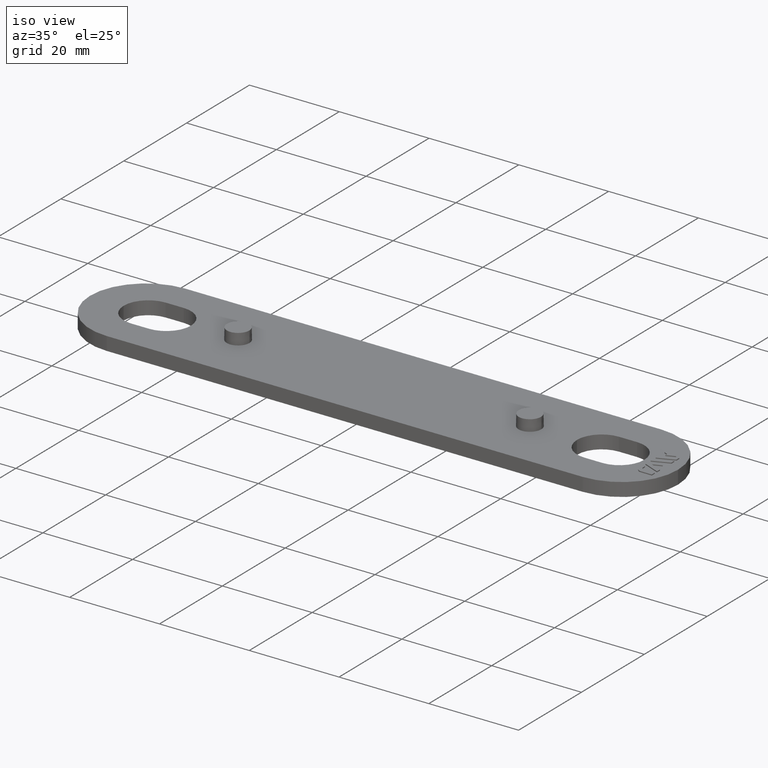
[diagram: clean part render]
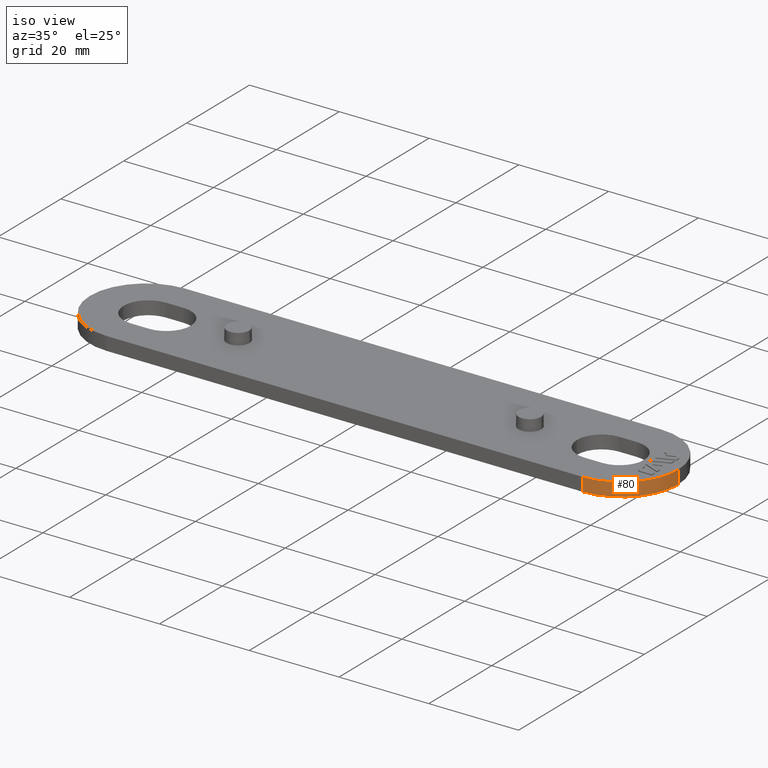
[diagram: same view with one face highlighted and labeled with its STEP entity id]
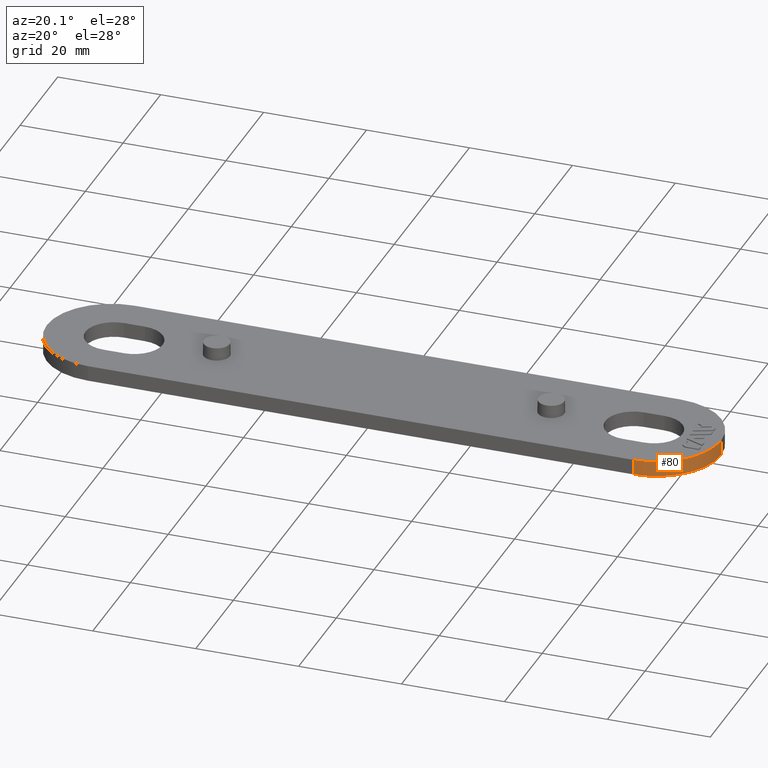
[diagram: same view with one face highlighted and labeled with its STEP entity id]
A machine part, iso view. The second image highlights one B-rep face of the part: STEP entity #80.
A second angle (auxiliary view) of the same face is appended — the face is thin or edge-on in the first view.
In plain terms, the highlighted cylindrical surface (partial cylindrical patch) has radius 12.5 mm, axis along (0, -0, -1).
Its self-contained STEP definition (entity closure, byte-faithful):
#80 = ADVANCED_FACE( '', ( #166 ), #167, .T. );
#166 = FACE_OUTER_BOUND( '', #323, .T. );
#167 = CYLINDRICAL_SURFACE( '', #324, 12.5000000000000 );
#323 = EDGE_LOOP( '', ( #540, #541, #542, #543 ) );
#324 = AXIS2_PLACEMENT_3D( '', #544, #545, #546 );
#540 = ORIENTED_EDGE( '', *, *, #1052, .T. );
#541 = ORIENTED_EDGE( '', *, *, #1088, .F. );
#542 = ORIENTED_EDGE( '', *, *, #1089, .F. );
#543 = ORIENTED_EDGE( '', *, *, #1086, .T. );
#544 = CARTESIAN_POINT( '', ( 53.0000000000000, -8.49741356322415E-031, -1.38777878078145E-014 ) );
#545 = DIRECTION( '', ( 5.60519385729927E-049, -6.12303176911189E-017, -1.00000000000000 ) );
#546 = DIRECTION( '', ( -6.12303176911189E-017, -1.00000000000000, 6.12303176911189E-017 ) );
#1052 = EDGE_CURVE( '', #1253, #1251, #1254, .T. );
#1086 = EDGE_CURVE( '', #1317, #1253, #1318, .T. );
#1088 = EDGE_CURVE( '', #1320, #1251, #1321, .T. );
#1089 = EDGE_CURVE( '', #1317, #1320, #1322, .T. );
#1251 = VERTEX_POINT( '', #1563 );
#1253 = VERTEX_POINT( '', #1566 );
#1254 = CIRCLE( '', #1567, 12.5000000000000 );
#1317 = VERTEX_POINT( '', #1655 );
#1318 = LINE( '', #1656, #1657 );
#1320 = VERTEX_POINT( '', #1659 );
#1321 = LINE( '', #1660, #1661 );
#1322 = CIRCLE( '', #1662, 12.5000000000000 );
#1563 = CARTESIAN_POINT( '', ( 53.0000000000000, -12.5000000000000, 2.99999999999999 ) );
#1566 = CARTESIAN_POINT( '', ( 65.5000000000000, 1.83690953073356E-016, 2.99999999999999 ) );
#1567 = AXIS2_PLACEMENT_3D( '', #1986, #1987, #1988 );
#1655 = CARTESIAN_POINT( '', ( 65.5000000000000, -8.49741356322415E-031, -1.38777878078145E-014 ) );
#1656 = CARTESIAN_POINT( '', ( 65.5000000000000, -8.49741356322415E-031, -1.38777878078145E-014 ) );
#1657 = VECTOR( '', #2038, 1000.00000000000 );
#1659 = CARTESIAN_POINT( '', ( 53.0000000000000, -12.5000000000000, -1.31124088366755E-014 ) );
#1660 = CARTESIAN_POINT( '', ( 53.0000000000000, -12.5000000000000, -1.31124088366755E-014 ) );
#1661 = VECTOR( '', #2042, 1000.00000000000 );
#1662 = AXIS2_PLACEMENT_3D( '', #2043, #2044, #2045 );
#1986 = CARTESIAN_POINT( '', ( 53.0000000000000, 1.83690953073356E-016, 2.99999999999999 ) );
#1987 = DIRECTION( '', ( 5.60519385729927E-049, -6.12303176911189E-017, -1.00000000000000 ) );
#1988 = DIRECTION( '', ( 6.12303176911189E-017, 1.00000000000000, -6.12303176911189E-017 ) );
#2038 = DIRECTION( '', ( 0.000000000000000, 6.12303176911189E-017, 1.00000000000000 ) );
#2042 = DIRECTION( '', ( 0.000000000000000, 6.12303176911189E-017, 1.00000000000000 ) );
#2043 = CARTESIAN_POINT( '', ( 53.0000000000000, -8.49741356322415E-031, -1.38777878078145E-014 ) );
#2044 = DIRECTION( '', ( 5.60519385729927E-049, -6.12303176911189E-017, -1.00000000000000 ) );
#2045 = DIRECTION( '', ( 6.12303176911189E-017, 1.00000000000000, -6.12303176911189E-017 ) );